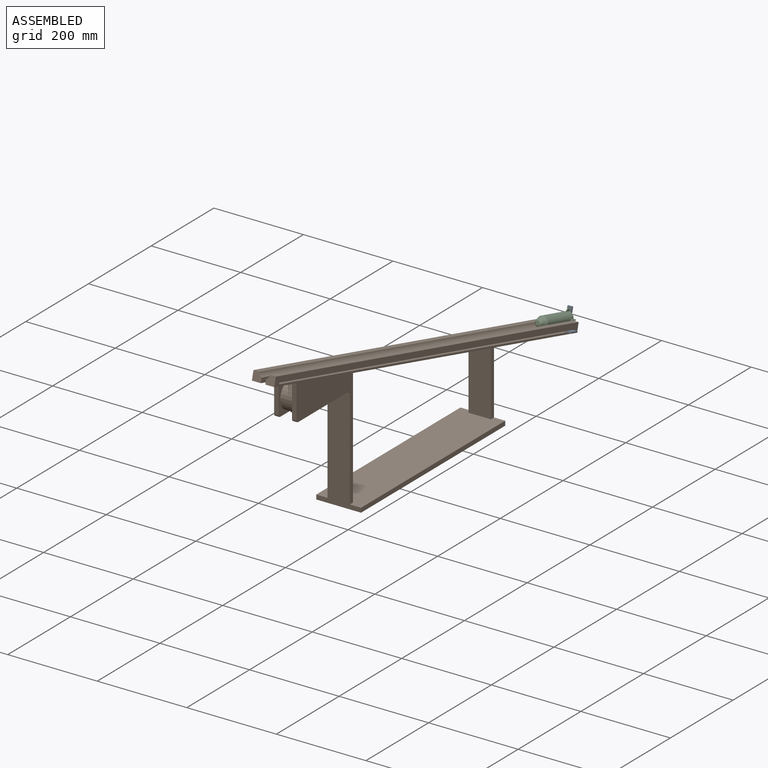
[diagram: assembled view]
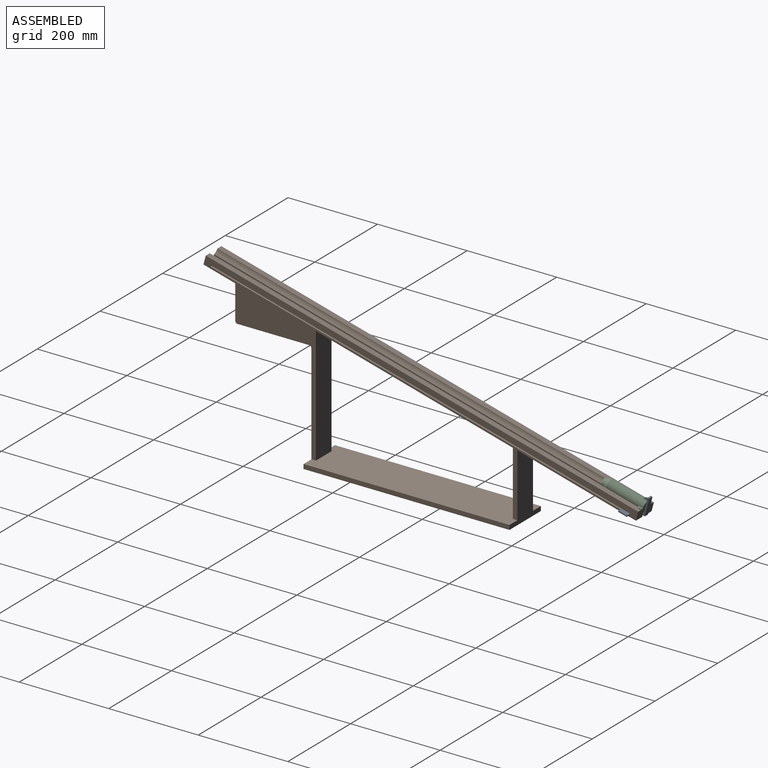
[diagram: assembled view, second angle]
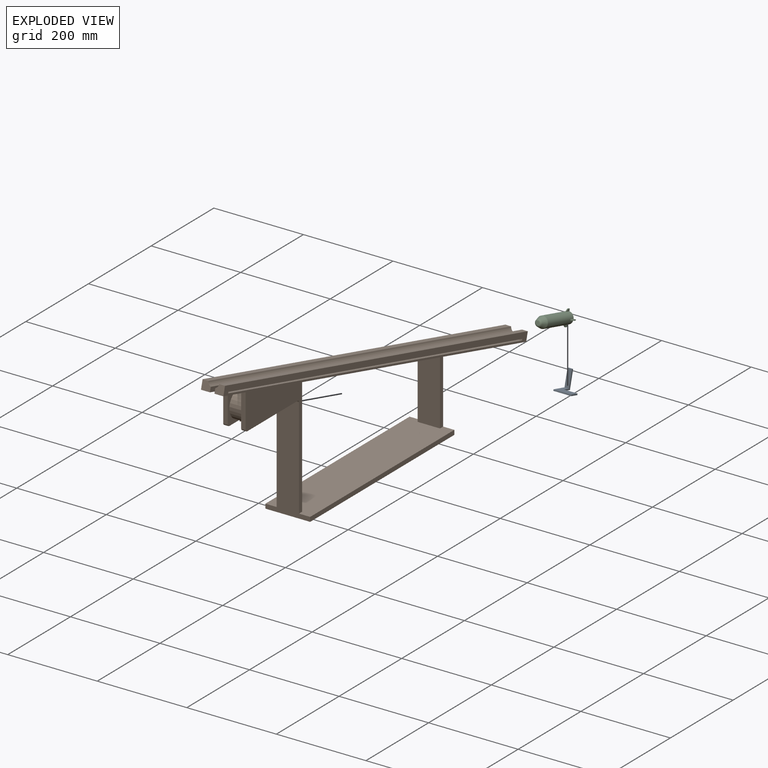
[diagram: exploded view]
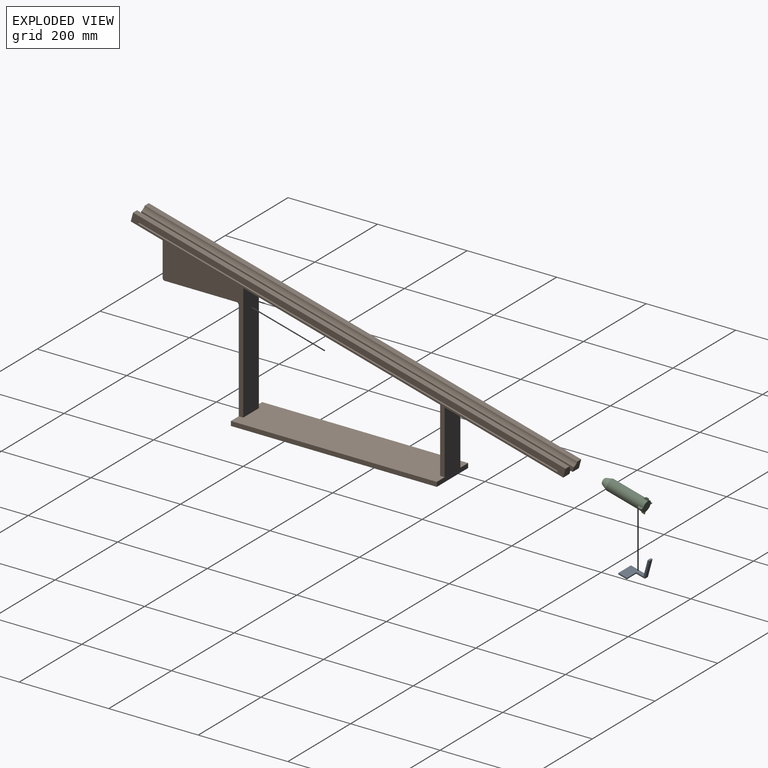
[diagram: exploded view, second angle]
ASSEMBLY  parts=3 mates=3
PART A: 10 faces, bbox 40x49x39.7 mm
  f0: plane 40x34.77mm, normal (0,0.26,0.97), area 960mm2, adj f4,f5,f6,f7,f8,f9
  f1: plane 40x38.64mm, normal (0,-0.26,-0.97), area 1000mm2, adj f2,f5,f6,f7,f8,f9
  f2: plane 38.64x10.35mm, normal (0,0.97,-0.26), area 400mm2, adj f1,f3,f5,f6
  f3: plane 10x3.86mm, normal (0,0.26,0.97), area 40mm2, adj f2,f4,f5,f6
  f4: plane 35.74x10mm, normal (0,-0.97,0.26), area 370mm2, adj f0,f3,f5,f6
  f5: plane 39.67x29.67mm, normal (1,0,0), area 208mm2, adj f0,f1,f2,f3,f4,f7
  f6: plane 48.99x39.67mm, normal (-1,0,0), area 268mm2, adj f0,f1,f2,f3,f4,f8
  f7: plane 30x2.9mm, normal (0,0.97,-0.26), area 90mm2, adj f0,f1,f5,f9
  f8: plane 40x2.9mm, normal (0,-0.97,0.26), area 120mm2, adj f0,f1,f6,f9
  f9: plane 20.1x8.07mm, normal (1,0,0), area 60mm2, adj f0,f1,f7,f8
PART B: 45 faces, bbox 100x971.1x358.1 mm
  f0: plane 241.1x64.6mm, normal (0,-0.26,-0.97), area 3232.2mm2, adj f3,f8,f21,f26,f37,f38
  f1: cylinder r=30mm len=60mm, axis (1,0,0), area 5635.2mm2, adj f35,f38,f43
  f2: plane 241.1x64.6mm, normal (0,-0.26,-0.97), area 3232.2mm2, adj f3,f4,f5,f12,f34,f35
  f3: plane 274.22x100mm, normal (0,-1,0), area 13410.8mm2, adj f0,f2,f4,f13,f19,f21,f22,f23
  f4: plane 971.1x348.14mm, normal (1,0,0), area 30963.6mm2, adj f2,f3,f7,f12,f14,f15,f16,f17
  f5: plane 968.65x269mm, normal (-1,0,0), area 7633.6mm2, adj f2,f7,f12,f15,f17,f24,f25,f27
  f6: plane 20x19.32mm, normal (0,0.97,-0.26), area 353mm2, adj f9,f11,f21,f26,f28
  f7: plane 20x19.32mm, normal (0,0.97,-0.26), area 353mm2, adj f4,f5,f15,f20,f27
  f8: plane 20x19.32mm, normal (0,-0.97,0.26), area 353mm2, adj f0,f11,f21,f26,f28
  f9: plane 264.82x70.96mm, normal (0,-0.26,-0.97), area 5483.3mm2, adj f6,f14,f21,f26
  f10: plane 440x117.9mm, normal (0,-0.26,-0.97), area 9110.4mm2, adj f16,f18,f21,f26
  f11: plane 965.93x258.82mm, normal (0,0.26,0.97), area 12661mm2, adj f6,f8,f21,f28
  f12: plane 20x19.32mm, normal (0,-0.97,0.26), area 353mm2, adj f2,f4,f5,f20,f27
  f13: plane 460x100mm, normal (0,0,-1), area 46000mm2, adj f3,f14,f22,f23
  f14: plane 150.96x100mm, normal (0,1,0), area 8048mm2, adj f4,f9,f13,f15,f19,f21,f22,f23
  f15: plane 264.82x70.96mm, normal (0,-0.26,-0.97), area 5483.3mm2, adj f4,f5,f7,f14
  f16: plane 261.54x50mm, normal (0,1,0), area 13076.8mm2, adj f4,f10,f17,f19,f21,f24
  f17: plane 440x117.9mm, normal (0,-0.26,-0.97), area 9110.4mm2, adj f4,f5,f16,f18
  f18: plane 143.64x50mm, normal (0,-1,0), area 7181.9mm2, adj f4,f10,f17,f19,f21,f25
  f19: plane 460x100mm, normal (0,0,1), area 45000mm2, adj f3,f4,f14,f16,f18,f21,f22,f23
  f20: plane 965.93x258.82mm, normal (0,0.26,0.97), area 12661mm2, adj f4,f7,f12,f27
  f21: plane 971.1x348.14mm, normal (-1,0,0), area 33873.6mm2, adj f0,f3,f6,f8,f9,f10,f11,f14
  f22: plane 460x10mm, normal (1,0,0), area 4600mm2, adj f3,f13,f14,f19
  f23: plane 460x10mm, normal (-1,0,0), area 4600mm2, adj f3,f13,f14,f19
  f24: plane 10x10mm, normal (0,0.26,0.97), area 103.5mm2, adj f3,f5,f16,f26
  f25: plane 10x10mm, normal (0,0.26,0.97), area 103.5mm2, adj f5,f14,f18,f26
  f26: plane 968.65x269mm, normal (1,0,0), area 10543.6mm2, adj f0,f6,f8,f9,f10,f24,f25,f28
  f27: cylinder r=12.5mm len=968.37mm, axis (0,0.97,-0.26), area 12482.4mm2, adj f5,f7,f12,f20
  f28: cylinder r=12.5mm len=968.37mm, axis (0,0.97,-0.26), area 12482.4mm2, adj f6,f8,f11,f26
  f29: plane 936.95x251.05mm, normal (0,0.26,0.97), area 19400mm2, adj f4,f5,f30,f32
  f30: plane 20x2.9mm, normal (0,-0.97,0.26), area 60mm2, adj f4,f5,f29,f31
  f31: plane 936.95x251.05mm, normal (0,-0.26,-0.97), area 19400mm2, adj f4,f5,f30,f32
  f32: plane 20x2.9mm, normal (0,0.97,-0.26), area 60mm2, adj f4,f5,f29,f31
  f33: plane 160x10mm, normal (0,0,-1), area 1600mm2, adj f4,f35,f41,f42
  f34: plane 75.55x10mm, normal (0,-1,0), area 755.5mm2, adj f2,f4,f35,f42
  f35: plane 170x85.55mm, normal (-1,0,0), area 6994.4mm2, adj f1,f2,f3,f33,f34,f41,f42
  f36: plane 160x10mm, normal (0,0,-1), area 1600mm2, adj f21,f38,f39,f40
  f37: plane 75.55x10mm, normal (0,-1,0), area 755.5mm2, adj f0,f21,f38,f40
  f38: plane 170x85.55mm, normal (1,0,0), area 6994.4mm2, adj f0,f1,f3,f36,f37,f39,f40
  f39: cylinder r=5mm len=10mm, axis (-1,0,0), area 78.5mm2, adj f3,f21,f36,f38
  f40: cylinder r=5mm len=10mm, axis (-1,0,0), area 78.5mm2, adj f21,f36,f37,f38
  f41: cylinder r=5mm len=10mm, axis (-1,0,0), area 78.5mm2, adj f3,f4,f33,f35
  f42: cylinder r=5mm len=10mm, axis (1,0,0), area 78.5mm2, adj f4,f33,f34,f35
  f43: cylinder r=2.5mm len=5.1mm, axis (0,0,-1), area 79.4mm2, adj f1,f44
  f44: plane 5x5mm, normal (0,0,-1), area 19.6mm2, adj f43
PART C: 26 faces, bbox 35x102.1x51.8 mm
  f0: cylinder r=12.5mm len=87.83mm, axis (0,0.97,-0.26), area 6535.3mm2, adj f2,f5,f6,f8,f9,f10,f11,f13
  f1: plane 7.58x7.33mm, normal (0,-0.97,0.26), area 45.2mm2, adj f4
  f2: plane 35x33.81mm, normal (0,0.97,-0.26), area 531mm2, adj f0,f6,f7,f8,f10,f11,f12,f14
  f3: cone r=12.5mm half-angle=21.8deg, axis (0,0.97,-0.26), area 785.4mm2, adj f4,f5
  f4: torus R=3.79mm, axis (0,0.97,-0.26), area 176.6mm2, adj f1,f3
  f5: torus R=8.5mm, axis (0,-0.97,0.26), area 118.6mm2, adj f0,f3
  f6: plane 9.66x5.04mm, normal (0,0.26,0.97), area 42.4mm2, adj f0,f2,f7,f9,f24
  f7: plane 6.31x3.48mm, normal (1,0,0), area 12mm2, adj f2,f6,f8,f24
  f8: plane 9.66x5.04mm, normal (0,-0.26,-0.97), area 42.4mm2, adj f0,f2,f7,f9,f24
  f9: plane 1.93x1.04mm, normal (0,-0.97,0.26), area 2mm2, adj f0,f6,f8,f24
  f10: plane 9.66x5.04mm, normal (0,0.26,0.97), area 42.4mm2, adj f0,f2,f12,f13,f22
  f11: plane 9.66x5.04mm, normal (0,-0.26,-0.97), area 42.4mm2, adj f0,f2,f12,f13,f22
  f12: plane 6.31x3.48mm, normal (-1,0,0), area 12mm2, adj f2,f10,f11,f22
  f13: plane 1.93x1.04mm, normal (0,-0.97,0.26), area 2mm2, adj f0,f10,f11,f22
  f14: plane 5.8x2mm, normal (0,0.26,0.97), area 12mm2, adj f2,f15,f16,f25
  f15: plane 10.96x6.42mm, normal (1,0,0), area 42.4mm2, adj f0,f2,f14,f17,f25
  f16: plane 10.96x6.42mm, normal (-1,0,0), area 42.4mm2, adj f0,f2,f14,f17,f25
  f17: plane 2x1mm, normal (0,-0.97,0.26), area 2mm2, adj f0,f15,f16,f25
  f18: plane 9.93x7.46mm, normal (1,0,0), area 42.4mm2, adj f0,f2,f19,f21,f23
  f19: plane 5.8x2mm, normal (0,-0.26,-0.97), area 12mm2, adj f2,f18,f20,f23
  f20: plane 9.93x7.46mm, normal (-1,0,0), area 42.4mm2, adj f0,f2,f19,f21,f23
  f21: plane 2x1mm, normal (0,-0.97,0.26), area 2mm2, adj f0,f18,f20,f23
  f22: plane 4.38x4mm, normal (-0.71,-0.68,0.18), area 11.3mm2, adj f10,f11,f12,f13
  f23: plane 4.9x2.83mm, normal (0,-0.87,-0.5), area 11.3mm2, adj f18,f19,f20,f21
  f24: plane 4.38x4mm, normal (0.71,-0.68,0.18), area 11.3mm2, adj f6,f7,f8,f9
  f25: plane 4.9x2.83mm, normal (0,-0.5,0.87), area 11.3mm2, adj f14,f15,f16,f17
PLACE A t=(0,2.59,179.66)mm
PLACE B t=(0,0,170)mm
PLACE C t=(0,0.97,169.74)mm
MATE slider C.f3 <-> B.f27  axis (0,0.97,-0.26) through (0,501.48,90.99)mm
MATE planar C.f3 <-> A.f4  axis (0,0.97,-0.26) through (0,501.48,90.99)mm
MATE slider A.f7 <-> B.f30  axis (0,0.97,-0.26) through (5,481.76,79.19)mm
